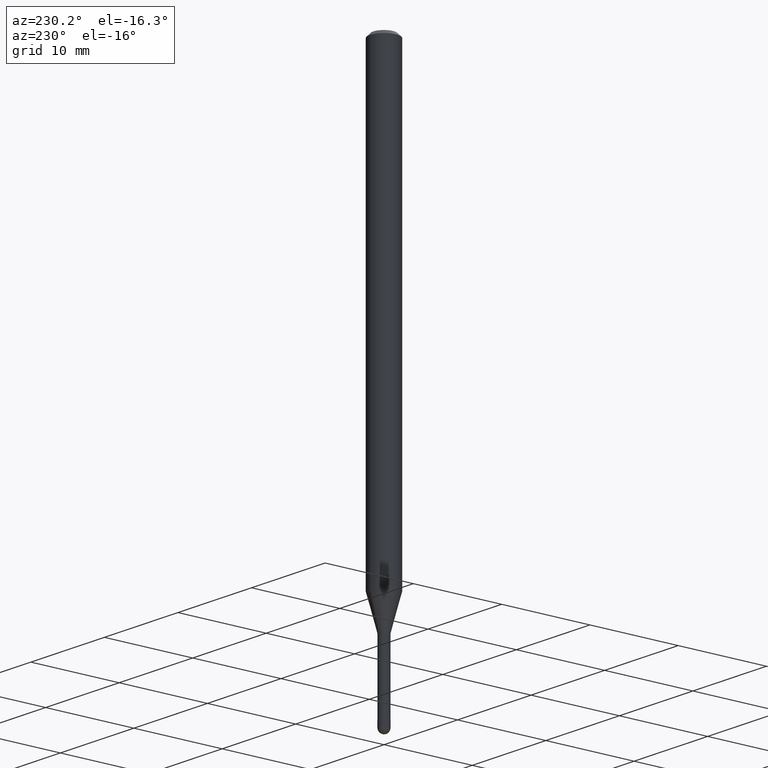
[diagram: clean part render]
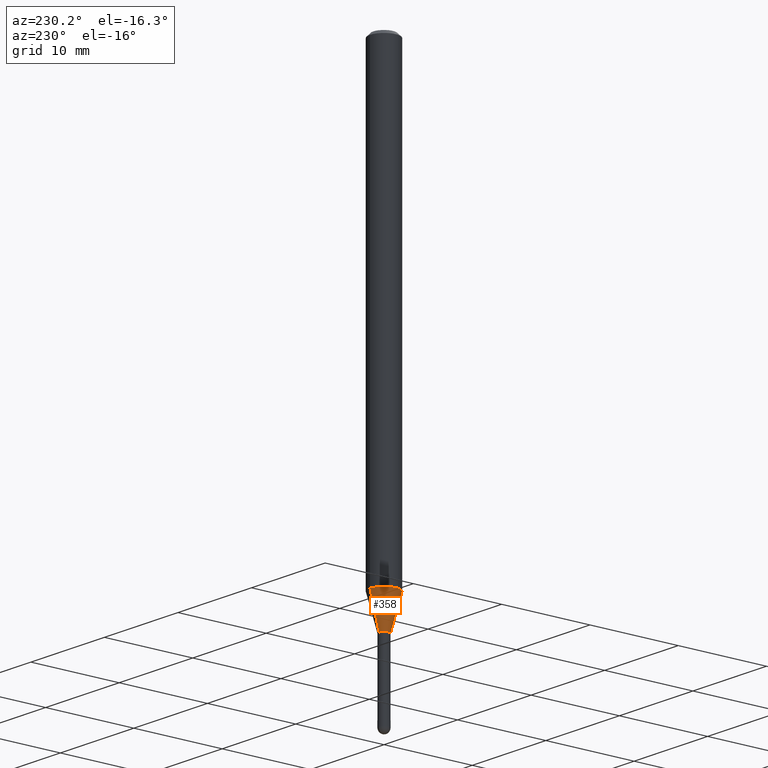
[diagram: same view with one face highlighted and labeled with its STEP entity id]
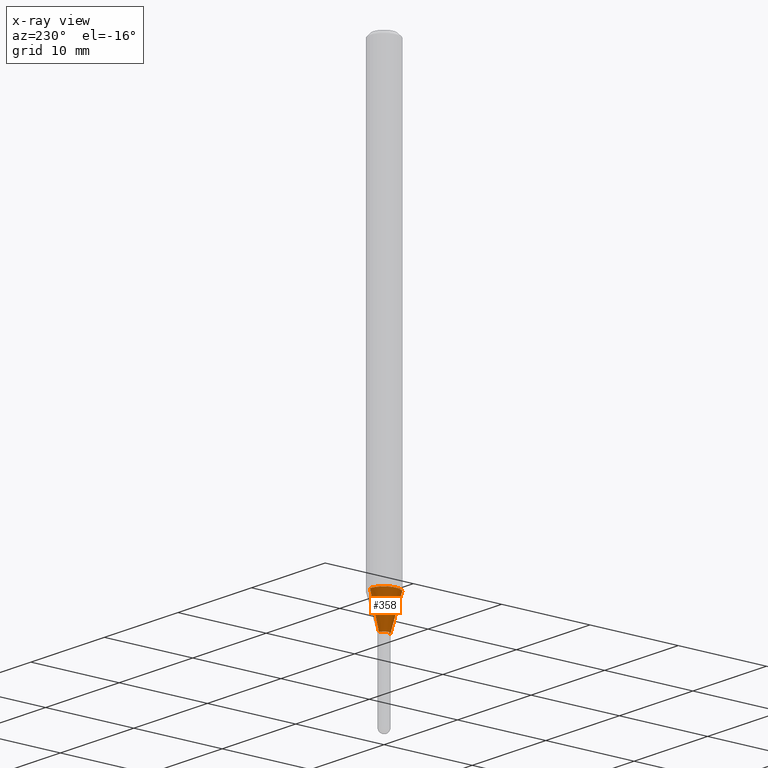
[diagram: x-ray of the same camera — body ghosted, the highlighted face saturated]
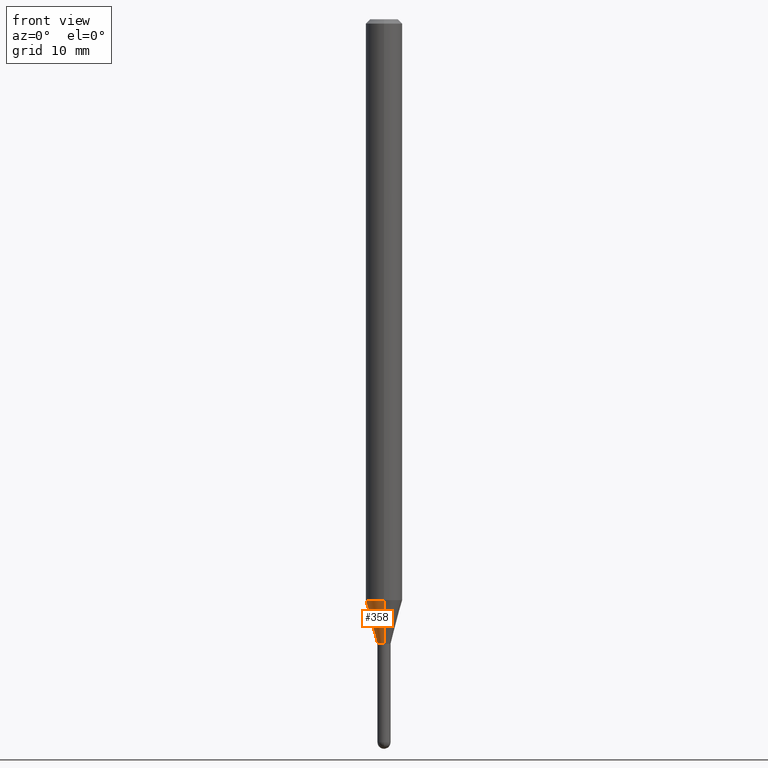
[diagram: same view with one face highlighted and labeled with its STEP entity id]
A machine part, auxiliary view. The second image highlights one B-rep face of the part: STEP entity #358.
The next image is the same camera in x-ray: the body ghosted, the highlighted face saturated — about 0% of this face is hidden behind the body in this view.
A second angle (front view) of the same face is appended — the face is thin or edge-on in the first view.
In plain terms, the highlighted conical surface has half-angle 15 deg.
Its self-contained STEP definition (entity closure, byte-faithful):
#4 = LINE ( 'NONE', #47, #118 ) ;
#7 = DIRECTION ( 'NONE',  ( -2.445426570913478520E-29, 3.491541822156042445E-15, 1.000000000000000000 ) ) ;
#11 = VECTOR ( 'NONE', #458, 39.37007874015748854 ) ;
#16 = DIRECTION ( 'NONE',  ( -2.445426570913478520E-29, 3.491541822156042445E-15, 1.000000000000000000 ) ) ;
#18 = EDGE_CURVE ( 'NONE', #180, #479, #208, .T. ) ;
#33 = DIRECTION ( 'NONE',  ( -2.445426570913478520E-29, 3.491541822156042445E-15, 1.000000000000000000 ) ) ;
#35 = CARTESIAN_POINT ( 'NONE',  ( 4.868154613401735281E-29, -6.950675040332431188E-15, -1.990717967697250401 ) ) ;
#47 = CARTESIAN_POINT ( 'NONE',  ( -1.571166602478900110E-16, -0.02250000000000766665, -2.140000000000000124 ) ) ;
#80 = CARTESIAN_POINT ( 'NONE',  ( -1.571166602478900110E-16, -0.02250000000000766665, -2.140000000000000124 ) ) ;
#88 = AXIS2_PLACEMENT_3D ( 'NONE', #35, #33, #258 ) ;
#92 = EDGE_CURVE ( 'NONE', #479, #454, #403, .T. ) ;
#94 = ORIENTED_EDGE ( 'NONE', *, *, #441, .T. ) ;
#109 = DIRECTION ( 'NONE',  ( -1.807323732225376682E-15, -0.2588190451025248473, 0.9659258262890673130 ) ) ;
#118 = VECTOR ( 'NONE', #109, 39.37007874015747433 ) ;
#123 = FACE_OUTER_BOUND ( 'NONE', #206, .T. ) ;
#149 = CARTESIAN_POINT ( 'NONE',  ( -4.364351673553429572E-16, -0.06250000000000695277, -1.990717967697250179 ) ) ;
#180 = VERTEX_POINT ( 'NONE', #394 ) ;
#183 = VERTEX_POINT ( 'NONE', #80 ) ;
#186 = DIRECTION ( 'NONE',  ( -6.982962677686265133E-15, -1.000000000000000000, 0.000000000000000000 ) ) ;
#192 = EDGE_CURVE ( 'NONE', #183, #454, #4, .T. ) ;
#206 = EDGE_LOOP ( 'NONE', ( #360, #94, #281, #329 ) ) ;
#208 = LINE ( 'NONE', #380, #11 ) ;
#232 = CIRCLE ( 'NONE', #361, 0.02250000000000019693 ) ;
#258 = DIRECTION ( 'NONE',  ( -6.982962677686265922E-15, -1.000000000000000000, 4.370956789862821150E-15 ) ) ;
#281 = ORIENTED_EDGE ( 'NONE', *, *, #192, .T. ) ;
#295 = CONICAL_SURFACE ( 'NONE', #456, 0.02250000000000019693, 0.2617993877991571239 ) ;
#312 = CARTESIAN_POINT ( 'NONE',  ( 5.233212861754843371E-29, -7.471899499413932237E-15, -2.140000000000000124 ) ) ;
#329 = ORIENTED_EDGE ( 'NONE', *, *, #92, .F. ) ;
#344 = CARTESIAN_POINT ( 'NONE',  ( 4.440892098501109339E-16, 0.06249999999999302641, -1.990717967697250623 ) ) ;
#358 = ADVANCED_FACE ( 'NONE', ( #123 ), #295, .T. ) ;
#360 = ORIENTED_EDGE ( 'NONE', *, *, #18, .F. ) ;
#361 = AXIS2_PLACEMENT_3D ( 'NONE', #373, #16, #186 ) ;
#373 = CARTESIAN_POINT ( 'NONE',  ( 5.233212861754843371E-29, -7.471899499413932237E-15, -2.140000000000000124 ) ) ;
#380 = CARTESIAN_POINT ( 'NONE',  ( 1.598721155460762277E-16, 0.02249999999999272721, -2.140000000000000124 ) ) ;
#394 = CARTESIAN_POINT ( 'NONE',  ( 3.019806626980937780E-16, 0.02249999999999272721, -2.140000000000000124 ) ) ;
#403 = CIRCLE ( 'NONE', #88, 0.06250000000000000000 ) ;
#441 = EDGE_CURVE ( 'NONE', #180, #183, #232, .T. ) ;
#454 = VERTEX_POINT ( 'NONE', #149 ) ;
#456 = AXIS2_PLACEMENT_3D ( 'NONE', #312, #7, #476 ) ;
#458 = DIRECTION ( 'NONE',  ( 1.839019923739646858E-15, 0.2588190451025315086, 0.9659258262890653146 ) ) ;
#476 = DIRECTION ( 'NONE',  ( -6.982962677686265133E-15, -1.000000000000000000, 0.000000000000000000 ) ) ;
#479 = VERTEX_POINT ( 'NONE', #344 ) ;